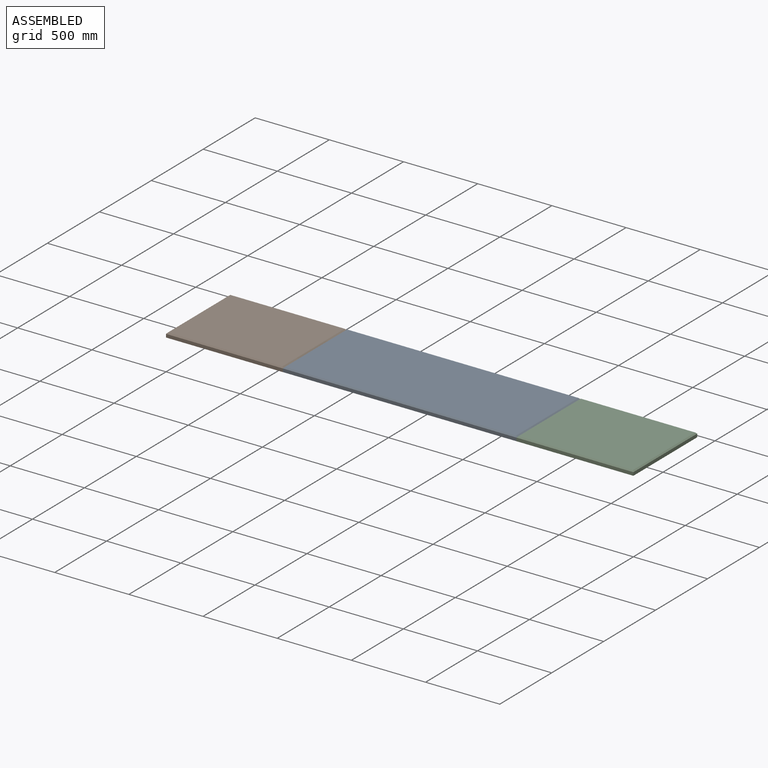
[diagram: assembled view]
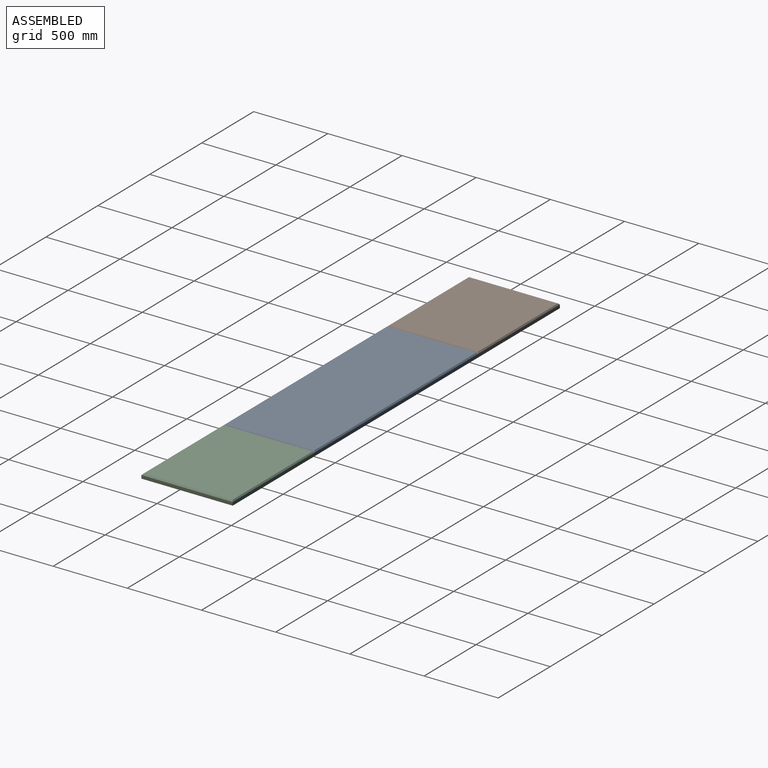
[diagram: assembled view, second angle]
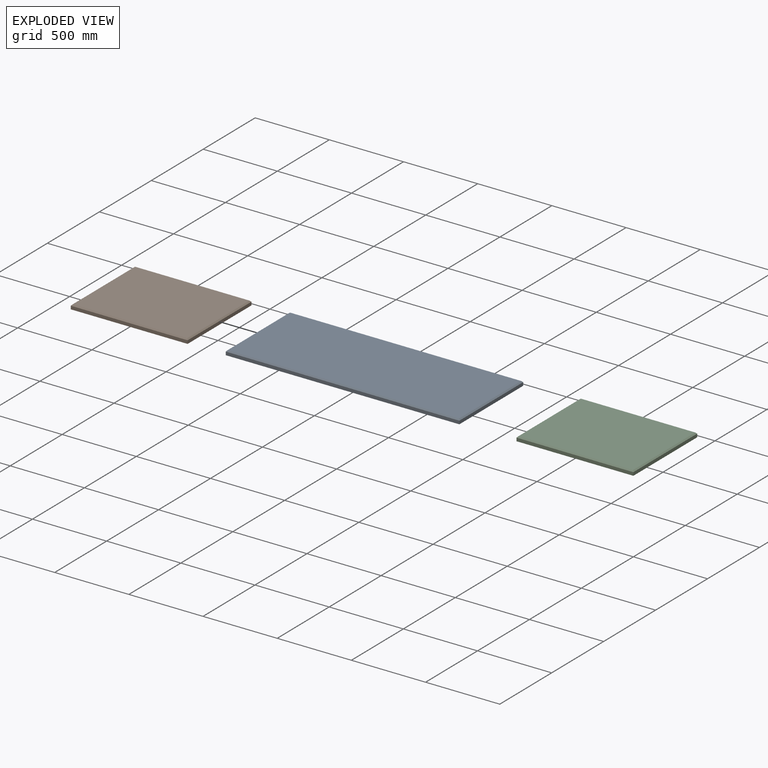
[diagram: exploded view]
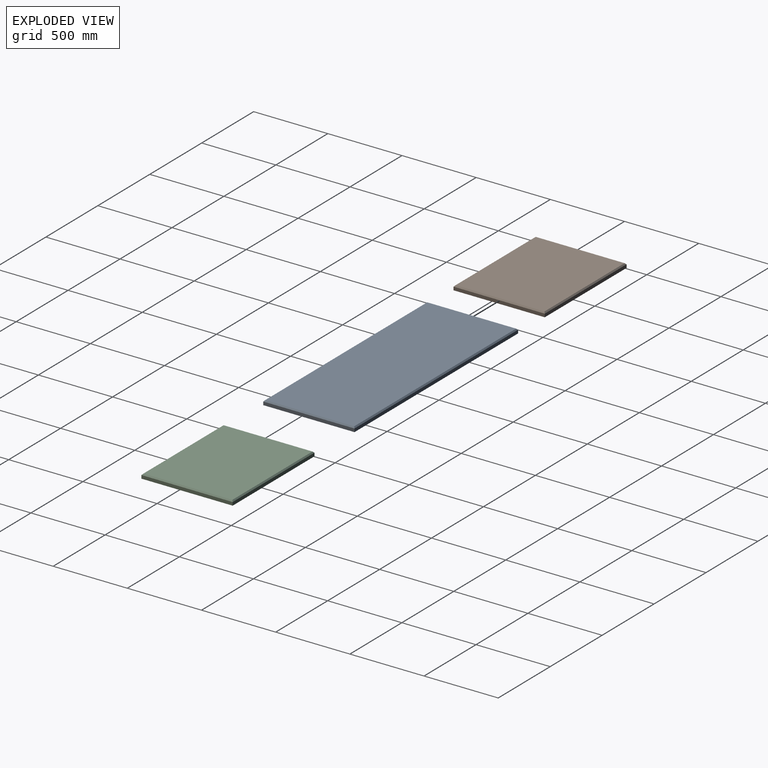
[diagram: exploded view, second angle]
ASSEMBLY  parts=3 mates=2
PART A: 10 faces, bbox 1575x615x30 mm
  f0: plane 1575x615mm, normal (0,0,-1), area 968625mm2, adj f1,f2,f3,f4
  f1: plane 1575x22mm, normal (0,-1,0), area 34650mm2, adj f0,f2,f4,f7
  f2: plane 615x22mm, normal (1,0,0), area 13530mm2, adj f0,f1,f3,f9
  f3: plane 1575x22mm, normal (0,1,0), area 34650mm2, adj f0,f2,f4,f8
  f4: plane 615x22mm, normal (-1,0,0), area 13530mm2, adj f0,f1,f3,f6
  f5: plane 1559x599mm, normal (0,0,1), area 933841mm2, adj f6,f7,f8,f9
  f6: plane 615x8mm, normal (-0.71,0,0.71), area 6867.4mm2, adj f4,f5,f7,f8
  f7: plane 1575x8mm, normal (0,-0.71,0.71), area 17728.6mm2, adj f1,f5,f6,f9
  f8: plane 1575x8mm, normal (0,0.71,0.71), area 17728.6mm2, adj f3,f5,f6,f9
  f9: plane 615x8mm, normal (0.71,0,0.71), area 6867.4mm2, adj f2,f5,f7,f8
PART B: 10 faces, bbox 787.5x615x30 mm
  f0: plane 787.5x615mm, normal (0,0,-1), area 484312.5mm2, adj f1,f3,f4,f5
  f1: plane 787.5x22mm, normal (0,1,0), area 17325mm2, adj f0,f3,f4,f7
  f2: plane 771.5x599mm, normal (0,0,1), area 462128.5mm2, adj f6,f7,f8,f9
  f3: plane 615x22mm, normal (1,0,0), area 13530mm2, adj f0,f1,f5,f9
  f4: plane 615x22mm, normal (-1,0,0), area 13530mm2, adj f0,f1,f5,f6
  f5: plane 787.5x22mm, normal (0,-1,0), area 17325mm2, adj f0,f3,f4,f8
  f6: plane 615x8mm, normal (-0.71,0,0.71), area 6867.4mm2, adj f2,f4,f7,f8
  f7: plane 787.5x8mm, normal (0,0.71,0.71), area 8819mm2, adj f1,f2,f6,f9
  f8: plane 787.5x8mm, normal (0,-0.71,0.71), area 8819mm2, adj f2,f5,f6,f9
  f9: plane 615x8mm, normal (0.71,0,0.71), area 6867.4mm2, adj f2,f3,f7,f8
PART C: same geometry as B
PLACE A t=(2362.5,1500,1530)mm
PLACE B t=(1575,885,1530)mm
PLACE C t=(3937.5,885,1530)mm
MATE fastened A.f0 <-> B.f0  axis (0,0,-1) through (787.5,0,0)mm
MATE fastened C.f0 <-> A.f0  axis (0,0,-1) through (2362.5,0,0)mm
